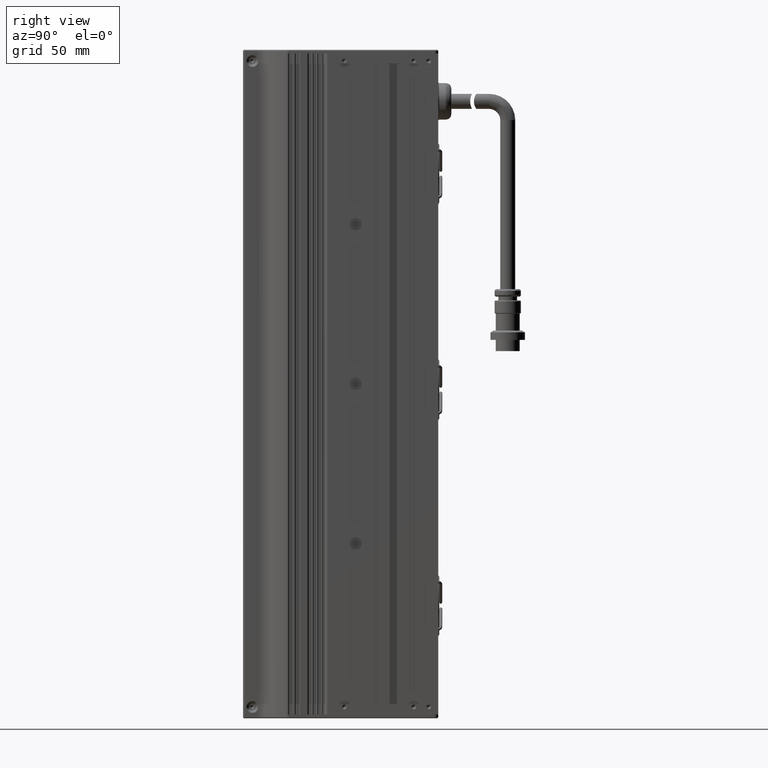
[diagram: clean part render]
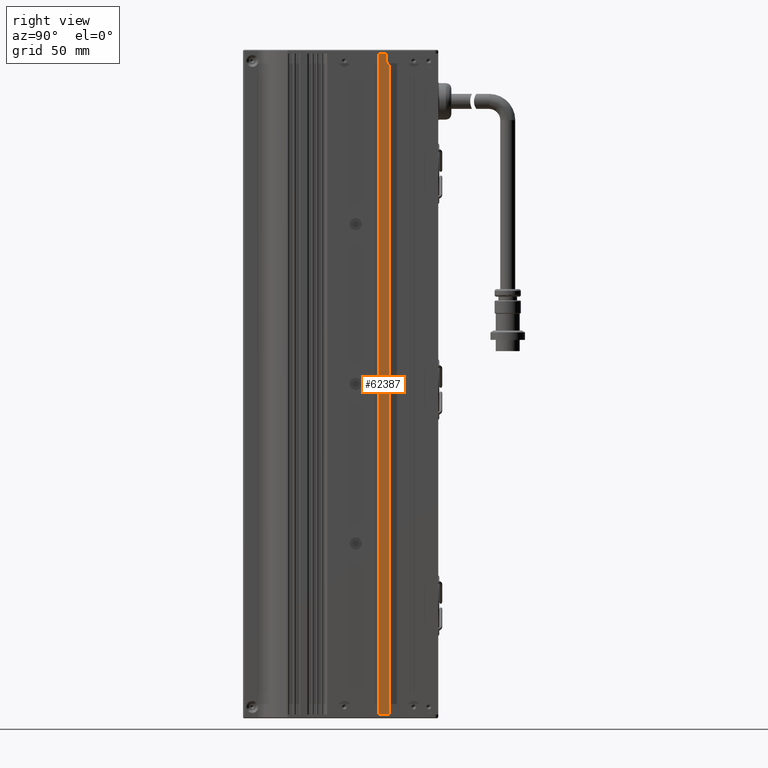
[diagram: same view with one face highlighted and labeled with its STEP entity id]
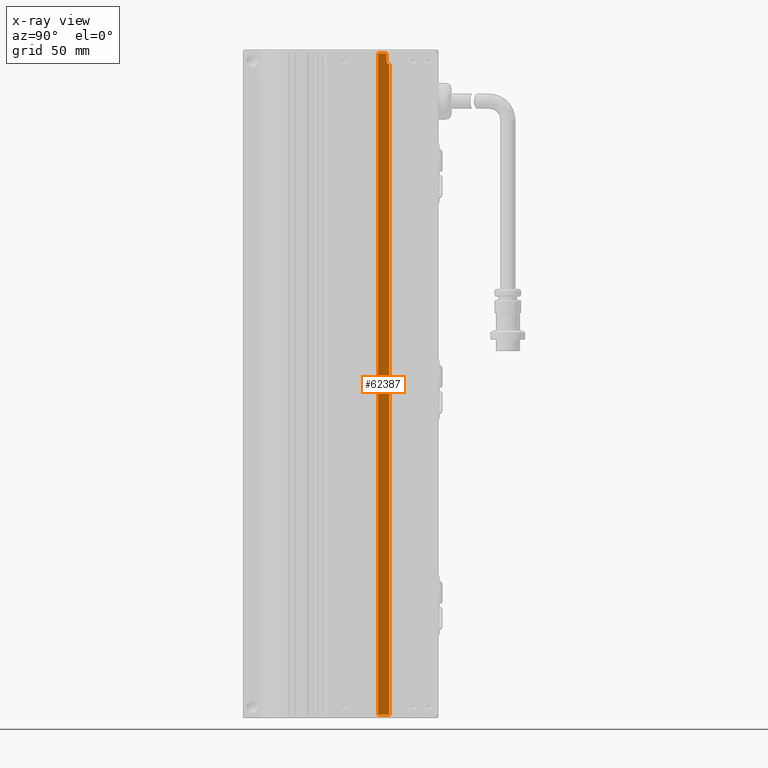
[diagram: x-ray of the same camera — body ghosted, the highlighted face saturated]
A machine part, right view. The second image highlights one B-rep face of the part: STEP entity #62387.
The next image is the same camera in x-ray: the body ghosted, the highlighted face saturated — about 0% of this face is hidden behind the body in this view.
In plain terms, the highlighted planar face has unit normal (1, -0, 0).
Its self-contained STEP definition (entity closure, byte-faithful):
#134 = ORIENTED_EDGE ( 'NONE', *, *, #18237, .T. ) ;
#1072 = CARTESIAN_POINT ( 'NONE',  ( -13.06201180637544100, 2.004524203069662400, 176.0000000000000000 ) ) ;
#1241 = LINE ( 'NONE', #20774, #100534 ) ;
#1286 = DIRECTION ( 'NONE',  ( 0.0000000000000000000, -0.0000000000000000000, -1.000000000000000000 ) ) ;
#2119 = DIRECTION ( 'NONE',  ( -0.0000000000000000000, 0.0000000000000000000, 1.000000000000000000 ) ) ;
#2131 = CARTESIAN_POINT ( 'NONE',  ( -13.06201180637544500, 2.004524203069656600, -176.0000000000000000 ) ) ;
#10152 = DIRECTION ( 'NONE',  ( 2.340267758484731700E-016, 1.000000000000000000, 0.0000000000000000000 ) ) ;
#10961 = VERTEX_POINT ( 'NONE', #12077 ) ;
#11573 = VECTOR ( 'NONE', #38657, 1000.000000000000000 ) ;
#12077 = CARTESIAN_POINT ( 'NONE',  ( -13.06201180637544100, 16.45452420306966300, 172.0000000000000000 ) ) ;
#14224 = AXIS2_PLACEMENT_3D ( 'NONE', #14385, #66570, #14768 ) ;
#14385 = CARTESIAN_POINT ( 'NONE',  ( -13.06201180637544100, 18.45452420306966300, 172.0000000000000000 ) ) ;
#14768 = DIRECTION ( 'NONE',  ( 0.0000000000000000000, 0.0000000000000000000, 1.000000000000000000 ) ) ;
#15513 = LINE ( 'NONE', #37019, #49535 ) ;
#16490 = CARTESIAN_POINT ( 'NONE',  ( -13.06201180637544100, 16.45452420306966300, 176.0000000000000000 ) ) ;
#18237 = EDGE_CURVE ( 'NONE', #10961, #61283, #48133, .T. ) ;
#19455 = ORIENTED_EDGE ( 'NONE', *, *, #97565, .T. ) ;
#20774 = CARTESIAN_POINT ( 'NONE',  ( -13.06201180637544100, 17.90452420306966300, 176.0000000000000000 ) ) ;
#24828 = EDGE_CURVE ( 'NONE', #42944, #61283, #89225, .T. ) ;
#27996 = ORIENTED_EDGE ( 'NONE', *, *, #33641, .T. ) ;
#33641 = EDGE_CURVE ( 'NONE', #42944, #40047, #15513, .T. ) ;
#35227 = DIRECTION ( 'NONE',  ( -0.0000000000000000000, 0.0000000000000000000, 1.000000000000000000 ) ) ;
#37019 = CARTESIAN_POINT ( 'NONE',  ( -13.06201180637544100, 12.00452420306966400, 176.0000000000000000 ) ) ;
#38657 = DIRECTION ( 'NONE',  ( 0.0000000000000000000, 1.000000000000000000, -0.0000000000000000000 ) ) ;
#40047 = VERTEX_POINT ( 'NONE', #48271 ) ;
#42710 = ORIENTED_EDGE ( 'NONE', *, *, #71044, .T. ) ;
#42944 = VERTEX_POINT ( 'NONE', #53313 ) ;
#48133 = LINE ( 'NONE', #87109, #71342 ) ;
#48271 = CARTESIAN_POINT ( 'NONE',  ( -13.06201180637544100, 12.00452420306966400, -176.0000000000000000 ) ) ;
#49128 = AXIS2_PLACEMENT_3D ( 'NONE', #56923, #65701, #99834 ) ;
#49535 = VECTOR ( 'NONE', #1286, 1000.000000000000000 ) ;
#53313 = CARTESIAN_POINT ( 'NONE',  ( -13.06201180637544100, 12.00452420306966400, 176.0000000000000300 ) ) ;
#56923 = CARTESIAN_POINT ( 'NONE',  ( -13.06201180637544500, 2.004524203069656600, 176.0000000000000000 ) ) ;
#61283 = VERTEX_POINT ( 'NONE', #16490 ) ;
#62387 = ADVANCED_FACE ( 'NONE', ( #74883 ), #66080, .T. ) ;
#65701 = DIRECTION ( 'NONE',  ( 1.000000000000000000, -2.340267758484731700E-016, 0.0000000000000000000 ) ) ;
#66080 = PLANE ( 'NONE',  #49128 ) ;
#66570 = DIRECTION ( 'NONE',  ( -1.000000000000000000, 0.0000000000000000000, 0.0000000000000000000 ) ) ;
#71044 = EDGE_CURVE ( 'NONE', #72634, #10961, #97749, .T. ) ;
#71342 = VECTOR ( 'NONE', #35227, 1000.000000000000000 ) ;
#72634 = VERTEX_POINT ( 'NONE', #85712 ) ;
#74883 = FACE_OUTER_BOUND ( 'NONE', #77492, .T. ) ;
#75697 = CARTESIAN_POINT ( 'NONE',  ( -13.06201180637544100, 17.90452420306966300, -176.0000000000000000 ) ) ;
#77492 = EDGE_LOOP ( 'NONE', ( #84593, #19455, #42710, #134, #97569, #27996 ) ) ;
#82655 = EDGE_CURVE ( 'NONE', #40047, #92787, #100269, .T. ) ;
#84593 = ORIENTED_EDGE ( 'NONE', *, *, #82655, .T. ) ;
#85712 = CARTESIAN_POINT ( 'NONE',  ( -13.06201180637544100, 17.90452420306966300, 170.0771115476970600 ) ) ;
#87109 = CARTESIAN_POINT ( 'NONE',  ( -13.06201180637544100, 16.45452420306966300, 176.0000000000000000 ) ) ;
#89225 = LINE ( 'NONE', #1072, #11573 ) ;
#92787 = VERTEX_POINT ( 'NONE', #75697 ) ;
#97565 = EDGE_CURVE ( 'NONE', #92787, #72634, #1241, .T. ) ;
#97569 = ORIENTED_EDGE ( 'NONE', *, *, #24828, .F. ) ;
#97749 = CIRCLE ( 'NONE', #14224, 2.000000000000001800 ) ;
#99834 = DIRECTION ( 'NONE',  ( 2.340267758484731700E-016, 1.000000000000000000, 0.0000000000000000000 ) ) ;
#100269 = LINE ( 'NONE', #2131, #107047 ) ;
#100534 = VECTOR ( 'NONE', #2119, 1000.000000000000000 ) ;
#107047 = VECTOR ( 'NONE', #10152, 1000.000000000000000 ) ;